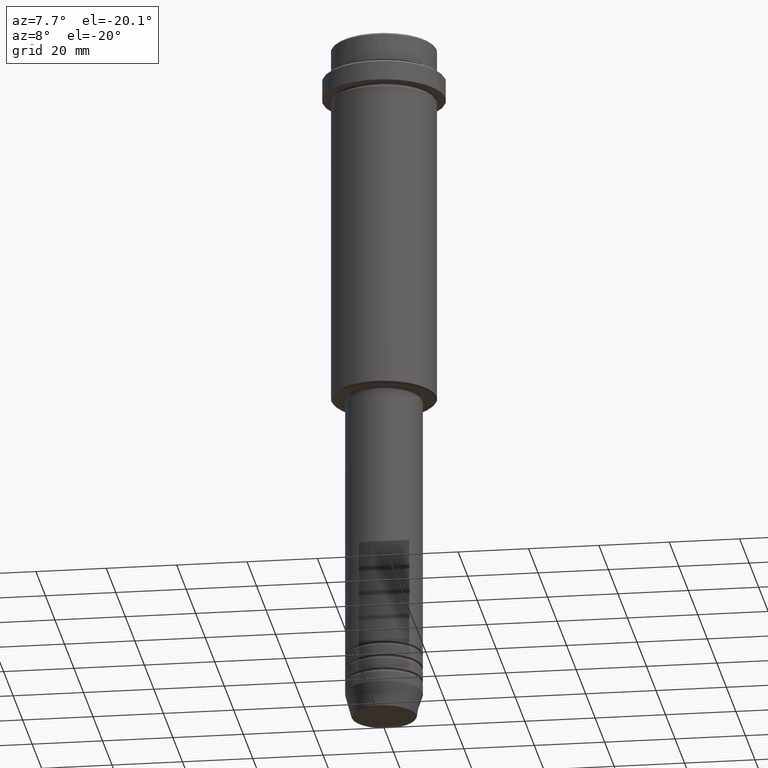
[diagram: clean part render]
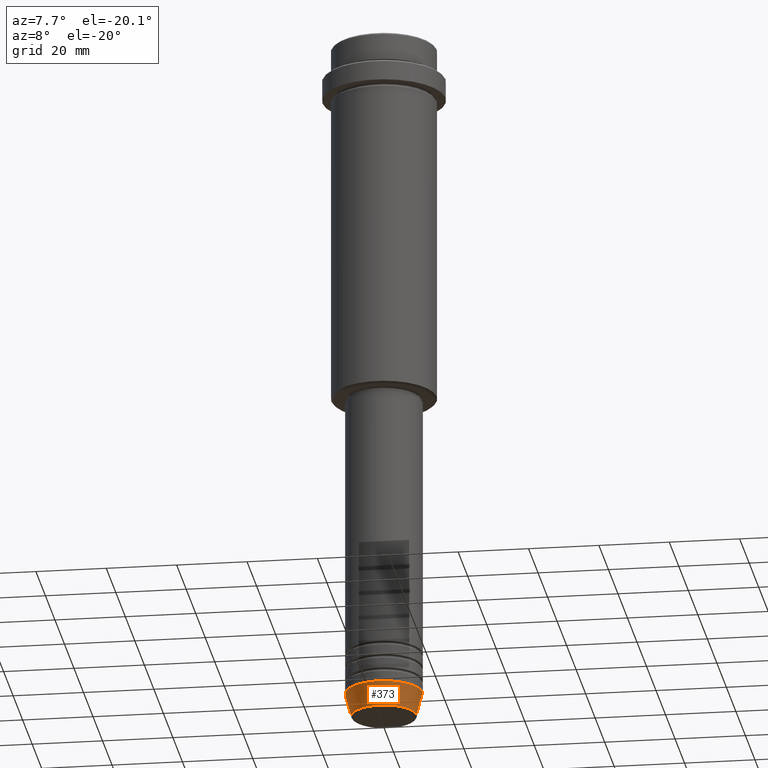
[diagram: same view with one face highlighted and labeled with its STEP entity id]
A machine part, auxiliary view. The second image highlights one B-rep face of the part: STEP entity #373.
In plain terms, the highlighted conical surface has half-angle 15 deg.
Its self-contained STEP definition (entity closure, byte-faithful):
#31 = DIRECTION ( 'NONE',  ( 0.2588190451025213501, 0.000000000000000000, 0.9659258262890680902 ) ) ;
#46 = DIRECTION ( 'NONE',  ( 1.000000000000000000, 0.000000000000000000, 0.000000000000000000 ) ) ;
#83 = ORIENTED_EDGE ( 'NONE', *, *, #751, .F. ) ;
#108 = ORIENTED_EDGE ( 'NONE', *, *, #522, .F. ) ;
#288 = VERTEX_POINT ( 'NONE', #496 ) ;
#373 = ADVANCED_FACE ( 'NONE', ( #491 ), #1026, .T. ) ;
#413 = CARTESIAN_POINT ( 'NONE',  ( -11.00000000000000000, 1.347111479062088405E-15, -193.0000000000000000 ) ) ;
#414 = AXIS2_PLACEMENT_3D ( 'NONE', #626, #924, #709 ) ;
#432 = ORIENTED_EDGE ( 'NONE', *, *, #544, .T. ) ;
#450 = CARTESIAN_POINT ( 'NONE',  ( -9.223655072137189492, 1.238341722557647202E-15, -199.6294095225512706 ) ) ;
#451 = CARTESIAN_POINT ( 'NONE',  ( 11.00000000000000000, 0.000000000000000000, -193.0000000000000000 ) ) ;
#468 = VERTEX_POINT ( 'NONE', #740 ) ;
#491 = FACE_OUTER_BOUND ( 'NONE', #560, .T. ) ;
#496 = CARTESIAN_POINT ( 'NONE',  ( -11.00000000000000000, 1.347111479062088405E-15, -193.0000000000000000 ) ) ;
#511 = DIRECTION ( 'NONE',  ( -0.000000000000000000, -0.000000000000000000, 1.000000000000000000 ) ) ;
#522 = EDGE_CURVE ( 'NONE', #1012, #288, #755, .T. ) ;
#544 = EDGE_CURVE ( 'NONE', #1380, #468, #1226, .T. ) ;
#560 = EDGE_LOOP ( 'NONE', ( #108, #1150, #432, #83 ) ) ;
#594 = VECTOR ( 'NONE', #849, 1000.000000000000000 ) ;
#626 = CARTESIAN_POINT ( 'NONE',  ( 0.000000000000000000, 0.000000000000000000, -193.0000000000000000 ) ) ;
#663 = CARTESIAN_POINT ( 'NONE',  ( 9.223655072137189492, 0.000000000000000000, -199.6294095225512706 ) ) ;
#709 = DIRECTION ( 'NONE',  ( 1.000000000000000000, 0.000000000000000000, 0.000000000000000000 ) ) ;
#729 = CARTESIAN_POINT ( 'NONE',  ( 0.000000000000000000, 0.000000000000000000, -193.0000000000000000 ) ) ;
#740 = CARTESIAN_POINT ( 'NONE',  ( 11.00000000000000000, 0.000000000000000000, -193.0000000000000000 ) ) ;
#751 = EDGE_CURVE ( 'NONE', #288, #468, #1307, .T. ) ;
#755 = LINE ( 'NONE', #413, #594 ) ;
#819 = AXIS2_PLACEMENT_3D ( 'NONE', #1199, #1391, #957 ) ;
#849 = DIRECTION ( 'NONE',  ( -0.2588190451025213501, 3.169619151431772337E-17, 0.9659258262890680902 ) ) ;
#888 = EDGE_CURVE ( 'NONE', #1012, #1380, #1304, .T. ) ;
#924 = DIRECTION ( 'NONE',  ( -0.000000000000000000, -0.000000000000000000, 1.000000000000000000 ) ) ;
#957 = DIRECTION ( 'NONE',  ( 1.000000000000000000, 0.000000000000000000, 0.000000000000000000 ) ) ;
#1012 = VERTEX_POINT ( 'NONE', #450 ) ;
#1026 = CONICAL_SURFACE ( 'NONE', #414, 11.00000000000000000, 0.2617993877991500740 ) ;
#1150 = ORIENTED_EDGE ( 'NONE', *, *, #888, .T. ) ;
#1181 = AXIS2_PLACEMENT_3D ( 'NONE', #729, #511, #46 ) ;
#1199 = CARTESIAN_POINT ( 'NONE',  ( 0.000000000000000000, 0.000000000000000000, -199.6294095225512706 ) ) ;
#1226 = LINE ( 'NONE', #451, #1327 ) ;
#1304 = CIRCLE ( 'NONE', #819, 9.223655072137189492 ) ;
#1307 = CIRCLE ( 'NONE', #1181, 11.00000000000000000 ) ;
#1327 = VECTOR ( 'NONE', #31, 1000.000000000000000 ) ;
#1380 = VERTEX_POINT ( 'NONE', #663 ) ;
#1391 = DIRECTION ( 'NONE',  ( -0.000000000000000000, -0.000000000000000000, 1.000000000000000000 ) ) ;